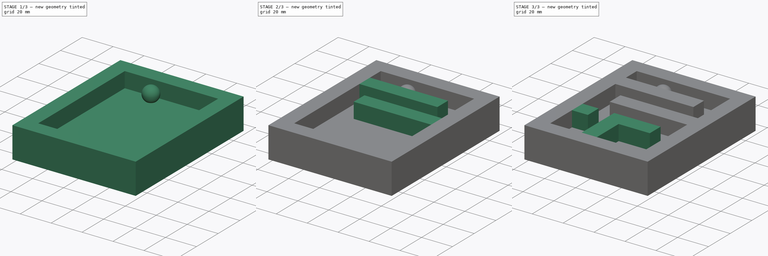
[diagram: build sequence overview — one tinted view per stage of 3, left to right]
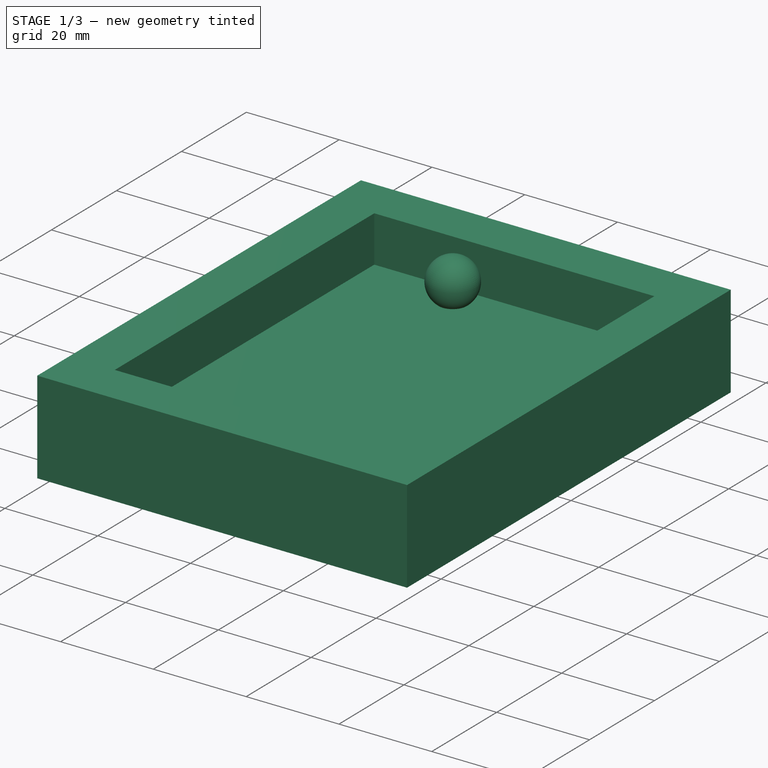
[diagram: stage 1 of 3 — iso view after this stage's code; geometry added in this stage tinted green]
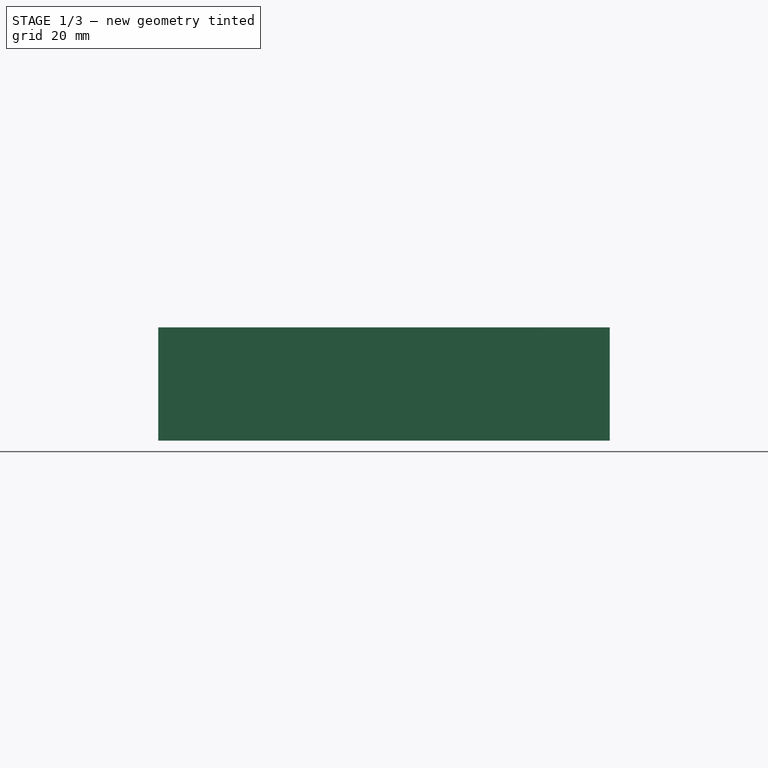
[diagram: stage 1 of 3 — front view after this stage's code; geometry added in this stage tinted green]
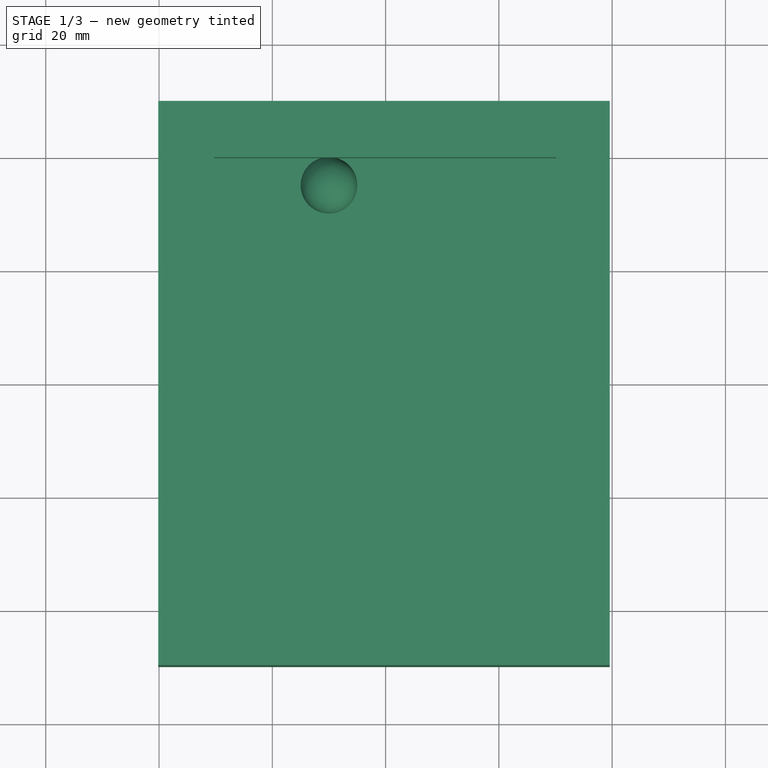
[diagram: stage 1 of 3 — top view after this stage's code; geometry added in this stage tinted green]
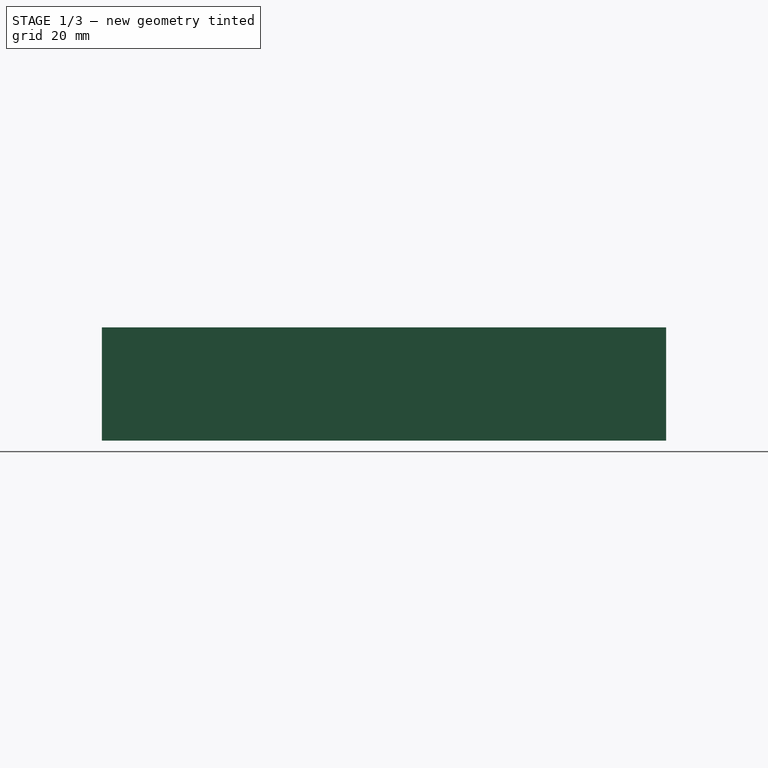
[diagram: stage 1 of 3 — right view after this stage's code; geometry added in this stage tinted green]
FCSTD DOCUMENT  (FreeCAD 0.21R33694 (Git))
Label: OJT1_T17R03_laberint
License: All rights reserved
LicenseURL: https://en.wikipedia.org/wiki/All_rights_reserved
objects: Sketcher::SketchObject×7, PartDesign::Pad×5, PartDesign::Pocket×2, PartDesign::Body×1, Part::Sphere×1
note: 23 computed .brp shape members not serialized (recipe doc carries the construction recipe); baked Part::Feature solids carry a one-line shape summary decoded from their .brp

FEATURE [Sketcher::SketchObject] Sketch
  FullyConstrained = false
  MapMode = 5
  Support = -> [XY_Plane]
  sketch-geometry (5):
    g0: LineSegment StartX=0 StartY=49.7811 StartZ=0 EndX=-40.1331 EndY=49.7811 EndZ=0
    g1: LineSegment StartX=-40.1331 StartY=49.7811 StartZ=0 EndX=-40.1331 EndY=-49.846 EndZ=0
    g2: LineSegment StartX=-40.1331 StartY=-49.846 StartZ=0 EndX=39.5686 EndY=-49.846 EndZ=0
    g3: LineSegment StartX=39.5686 StartY=-49.846 StartZ=0 EndX=39.5686 EndY=49.7811 EndZ=0
    g4: LineSegment StartX=39.5686 StartY=49.7811 StartZ=0 EndX=0 EndY=49.7811 EndZ=0
  constraints (11):
    c: PointOnObject(g0,g-2)
    c: Horizontal(g0)
    c: Coincident(g0,g1)
    c: Vertical(g1)
    c: Coincident(g1,g2)
    c: Horizontal(g2)
    c: Coincident(g2,g3)
    c: Vertical(g3)
    c: Coincident(g3,g4)
    c: Coincident(g4,g0)
    c: Horizontal(g4)
FEATURE [PartDesign::Pad] Pad
  Direction = (0,0,1)
  Length = 20
  Length2 = 10
  Profile = -> Sketch
  ReferenceAxis = -> Sketch [N_Axis]
  Type = 0
FEATURE [Sketcher::SketchObject] Sketch001
  FullyConstrained = false
  MapMode = 5
  Placement = pos=(0,0,20) rot=(0,0,1;0rad)
  Support = -> [Pad]
  sketch-geometry (4):
    g0: LineSegment StartX=-30.2966 StartY=39.8305 StartZ=0 EndX=-30.2966 EndY=-40.0424 EndZ=0
    g1: LineSegment StartX=-30.2966 StartY=-40.0424 StartZ=0 EndX=30.0847 EndY=-40.0424 EndZ=0
    g2: LineSegment StartX=30.0847 StartY=-40.0424 StartZ=0 EndX=30.0847 EndY=39.8305 EndZ=0
    g3: LineSegment StartX=30.0847 StartY=39.8305 StartZ=0 EndX=-30.2966 EndY=39.8305 EndZ=0
  constraints (8):
    c: Vertical(g0)
    c: Coincident(g0,g1)
    c: Horizontal(g1)
    c: Coincident(g1,g2)
    c: Vertical(g2)
    c: Coincident(g2,g3)
    c: Coincident(g3,g0)
    c: Horizontal(g3)
FEATURE [PartDesign::Pocket] Pocket
  BaseFeature = -> Pad
  Direction = (0,0,-1)
  Length = 10
  Length2 = 5
  Profile = -> Sketch001
  ReferenceAxis = -> Sketch001 [N_Axis]
  Type = 0
FEATURE [PartDesign::Body] Body
  Group = -> [Sketch,Pad,Sketch001,Pocket,Sketch002,Pad001,Sketch003,Pad002,Sketch004,Pad003,Sketch005,Pad004,Sketch006,Pocket001]
  Origin = -> Origin
  Tip = -> Pocket001
FEATURE [Part::Sphere] Sphere  label="Esfera"
  Angle1 = -90
  Angle2 = 90
  Angle3 = 360
  AttacherType = Attacher::AttachEngine3D
  Placement = pos=(-10,35,14) rot=(0,0,1;0rad)
  Radius = 5
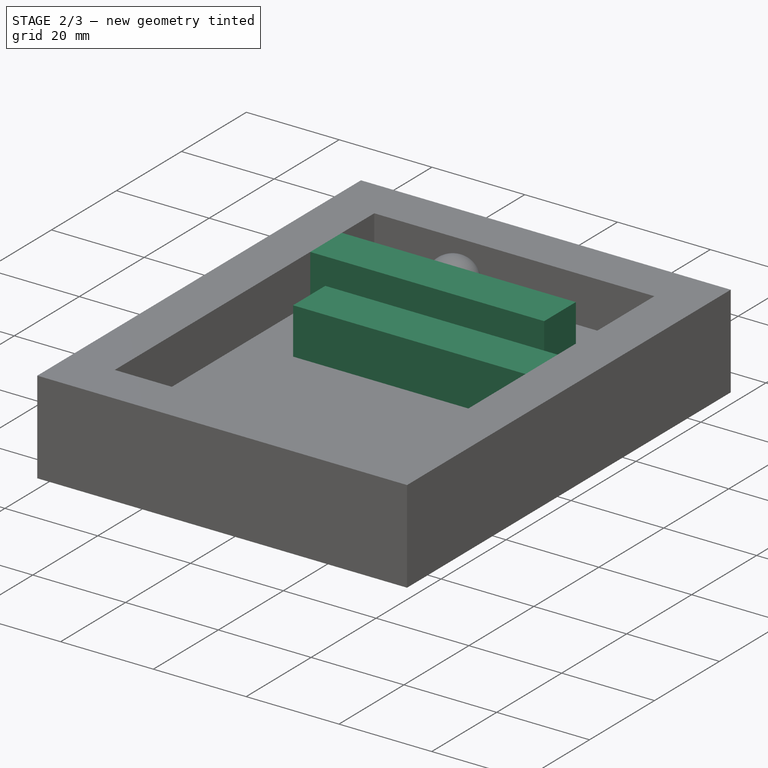
[diagram: stage 2 of 3 — iso view after this stage's code; geometry added in this stage tinted green]
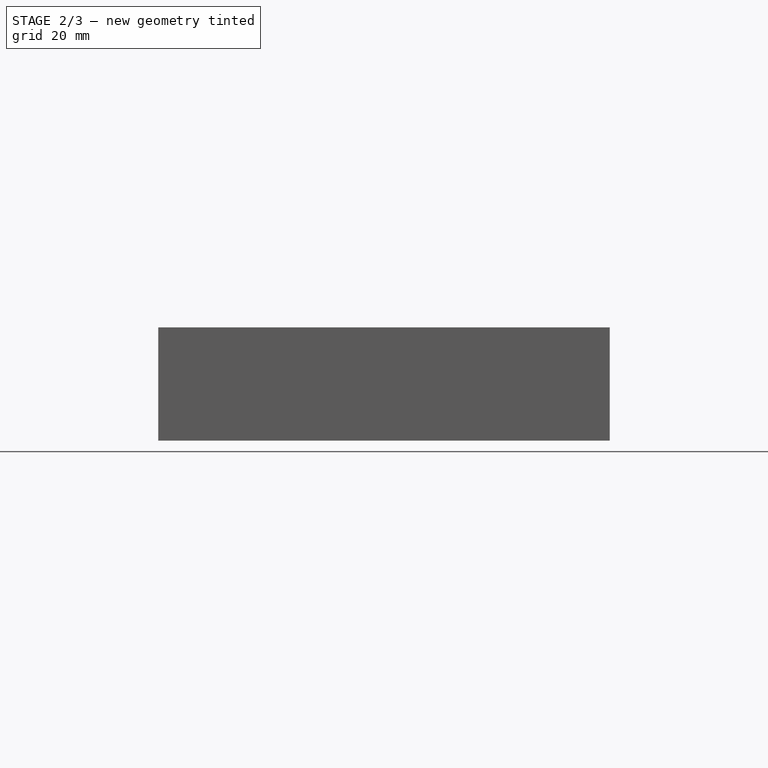
[diagram: stage 2 of 3 — front view after this stage's code; geometry added in this stage tinted green]
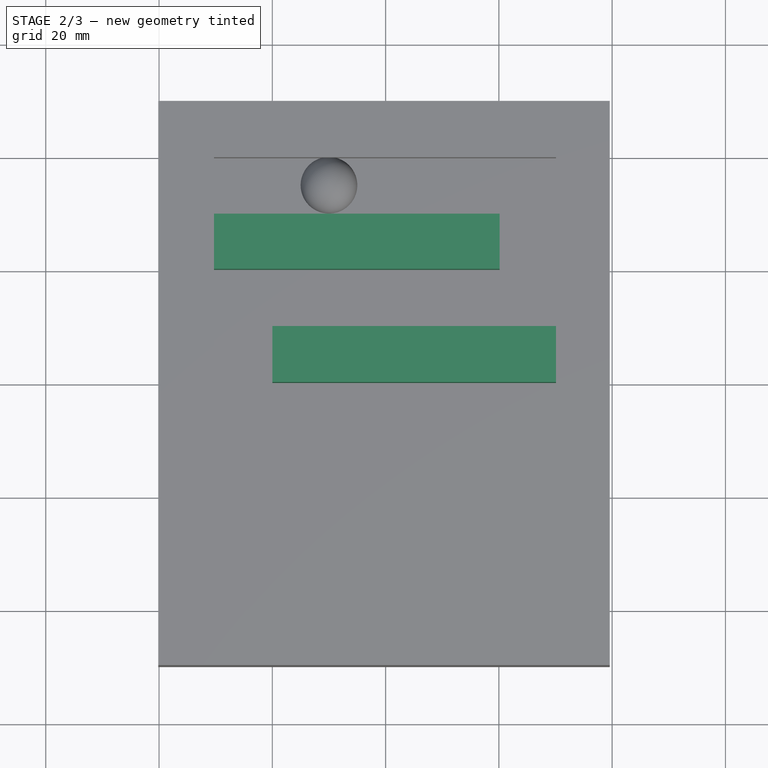
[diagram: stage 2 of 3 — top view after this stage's code; geometry added in this stage tinted green]
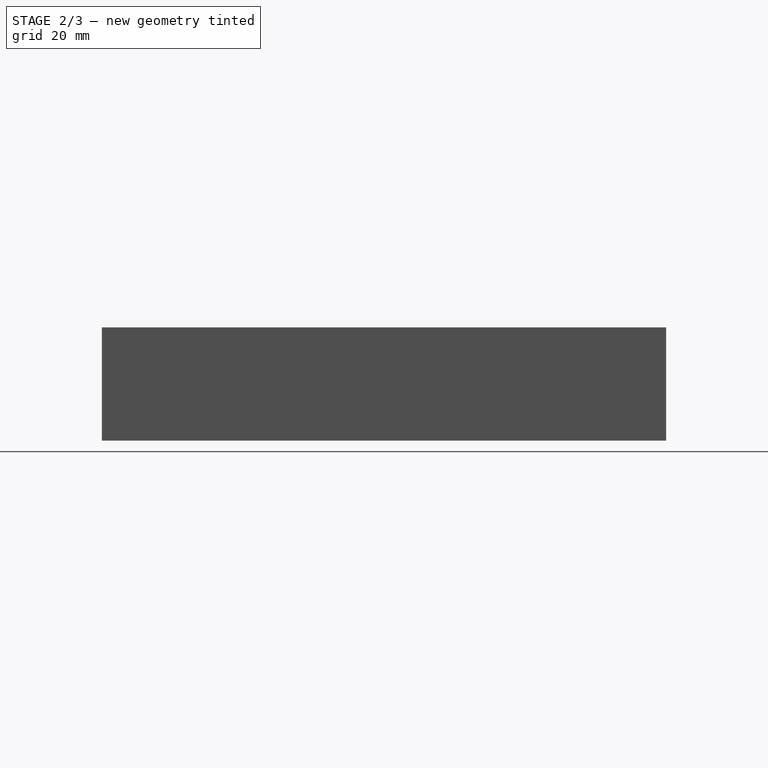
[diagram: stage 2 of 3 — right view after this stage's code; geometry added in this stage tinted green]
FEATURE [Sketcher::SketchObject] Sketch002
  FullyConstrained = false
  MapMode = 5
  Placement = pos=(0,0,10) rot=(0,0,1;0rad)
  Support = -> [Pocket]
  sketch-geometry (4):
    g0: LineSegment StartX=-30.5085 StartY=29.8729 StartZ=0 EndX=20.1271 EndY=29.8729 EndZ=0
    g1: LineSegment StartX=20.1271 StartY=29.8729 StartZ=0 EndX=20.1271 EndY=20.1271 EndZ=0
    g2: LineSegment StartX=20.1271 StartY=20.1271 StartZ=0 EndX=-30.5085 EndY=20.1271 EndZ=0
    g3: LineSegment StartX=-30.5085 StartY=20.1271 StartZ=0 EndX=-30.5085 EndY=29.8729 EndZ=0
  constraints (8):
    c: Horizontal(g0)
    c: Coincident(g0,g1)
    c: Vertical(g1)
    c: Coincident(g1,g2)
    c: Horizontal(g2)
    c: Coincident(g2,g3)
    c: Coincident(g3,g0)
    c: Vertical(g3)
FEATURE [PartDesign::Pad] Pad001
  BaseFeature = -> Pocket
  Direction = (0,0,1)
  Length = 10
  Length2 = 10
  Profile = -> Sketch002
  ReferenceAxis = -> Sketch002 [N_Axis]
  Type = 0
FEATURE [Sketcher::SketchObject] Sketch003
  FullyConstrained = false
  MapMode = 5
  Placement = pos=(0,0,10) rot=(0,0,1;0rad)
  Support = -> [Pad001]
  sketch-geometry (4):
    g0: LineSegment StartX=30.3887 StartY=10.0443 StartZ=0 EndX=-19.9983 EndY=10.0443 EndZ=0
    g1: LineSegment StartX=-19.9983 StartY=10.0443 StartZ=0 EndX=-19.9983 EndY=0.13657 EndZ=0
    g2: LineSegment StartX=-19.9983 StartY=0.13657 StartZ=0 EndX=30.3887 EndY=0.13657 EndZ=0
    g3: LineSegment StartX=30.3887 StartY=0.13657 StartZ=0 EndX=30.3887 EndY=10.0443 EndZ=0
  constraints (8):
    c: Horizontal(g0)
    c: Coincident(g0,g1)
    c: Vertical(g1)
    c: Coincident(g1,g2)
    c: Horizontal(g2)
    c: Coincident(g2,g3)
    c: Coincident(g3,g0)
    c: Vertical(g3)
FEATURE [PartDesign::Pad] Pad002
  BaseFeature = -> Pad001
  Direction = (0,0,1)
  Length = 10
  Length2 = 10
  Profile = -> Sketch003
  ReferenceAxis = -> Sketch003 [N_Axis]
  Type = 0
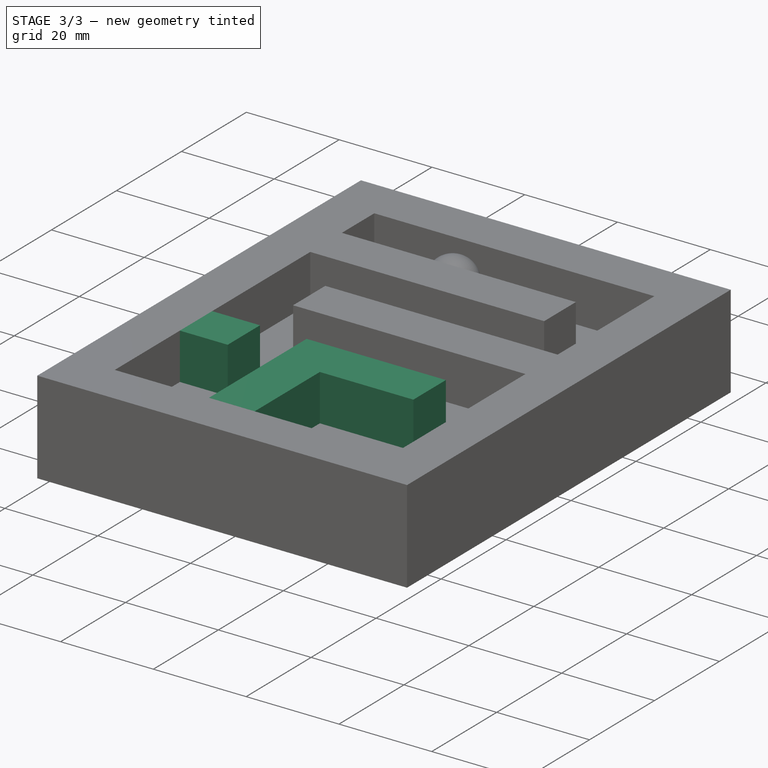
[diagram: stage 3 of 3 — iso view after this stage's code; geometry added in this stage tinted green]
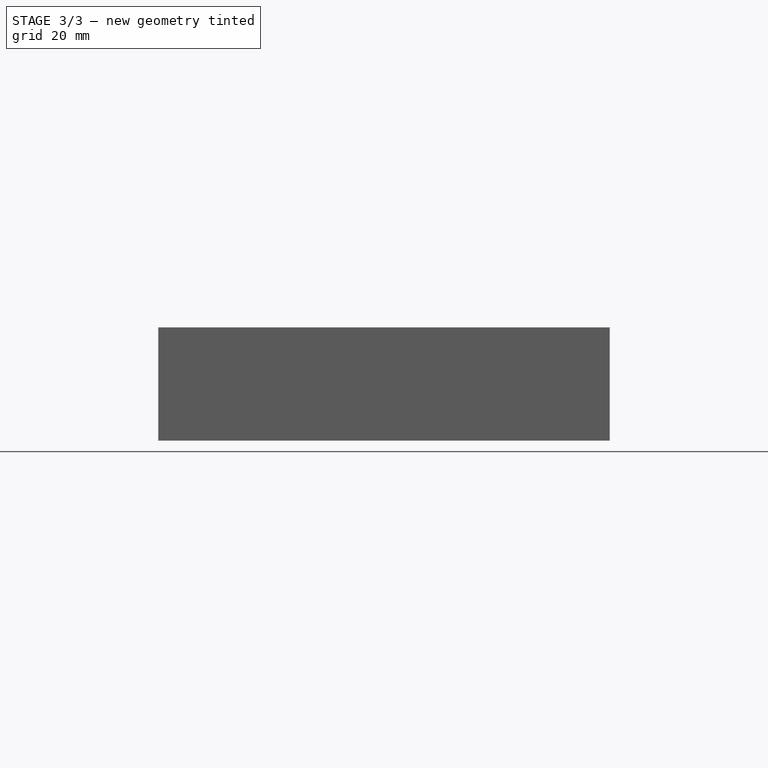
[diagram: stage 3 of 3 — front view after this stage's code; geometry added in this stage tinted green]
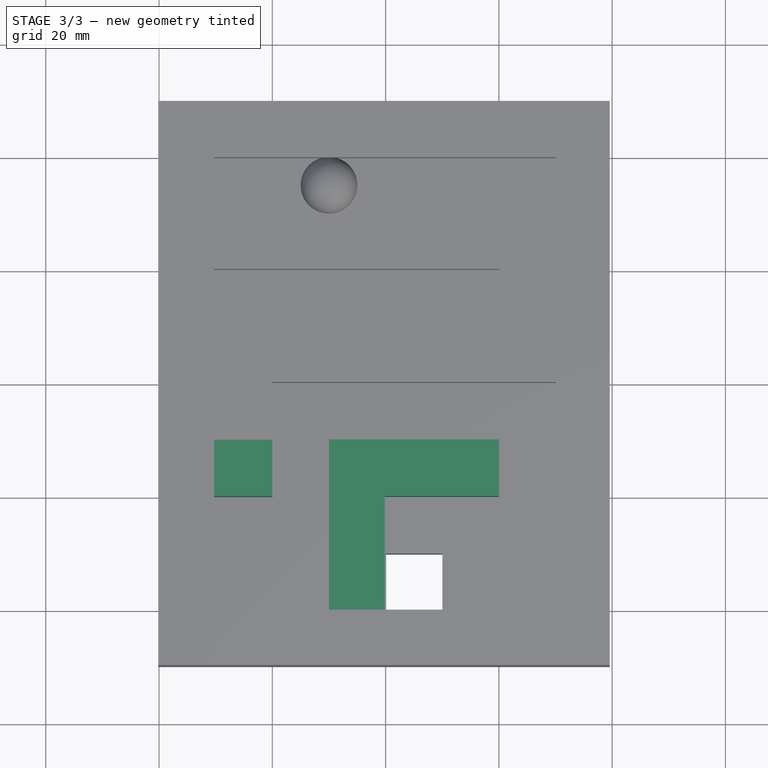
[diagram: stage 3 of 3 — top view after this stage's code; geometry added in this stage tinted green]
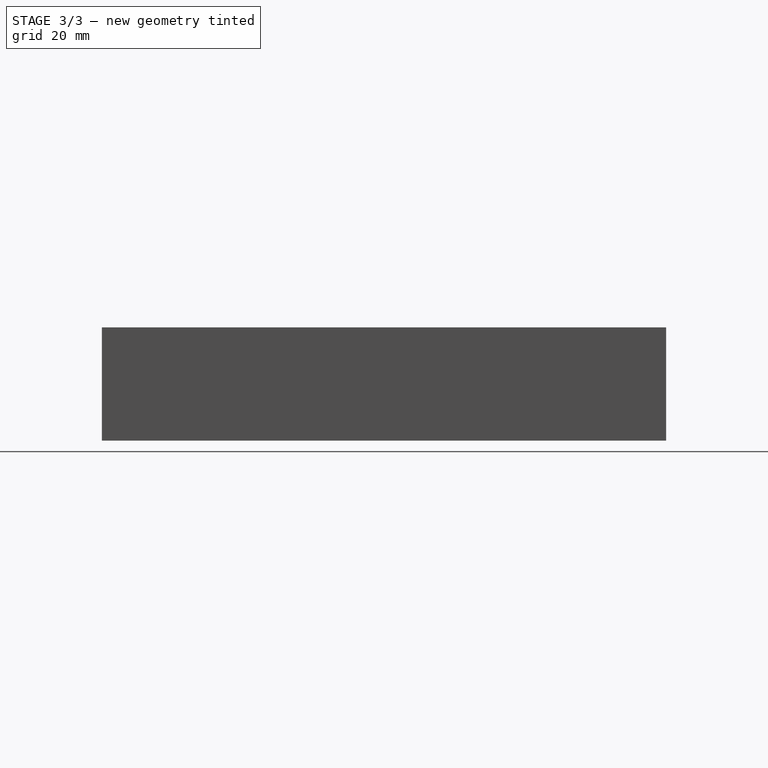
[diagram: stage 3 of 3 — right view after this stage's code; geometry added in this stage tinted green]
FEATURE [Sketcher::SketchObject] Sketch004
  FullyConstrained = false
  MapMode = 5
  Placement = pos=(0,0,10) rot=(0,0,1;0rad)
  Support = -> [Pad002]
  sketch-geometry (4):
    g0: LineSegment StartX=-30.3998 StartY=-10.0619 StartZ=0 EndX=-19.9874 EndY=-10.0619 EndZ=0
    g1: LineSegment StartX=-19.9874 StartY=-10.0619 StartZ=0 EndX=-19.9874 EndY=-20.006 EndZ=0
    g2: LineSegment StartX=-19.9874 StartY=-20.006 StartZ=0 EndX=-30.3998 EndY=-20.006 EndZ=0
    g3: LineSegment StartX=-30.3998 StartY=-20.006 StartZ=0 EndX=-30.3998 EndY=-10.0619 EndZ=0
  constraints (8):
    c: Horizontal(g0)
    c: Coincident(g0,g1)
    c: Vertical(g1)
    c: Coincident(g1,g2)
    c: Horizontal(g2)
    c: Coincident(g2,g3)
    c: Coincident(g3,g0)
    c: Vertical(g3)
FEATURE [PartDesign::Pad] Pad003
  BaseFeature = -> Pad002
  Direction = (0,0,1)
  Length = 10
  Length2 = 10
  Profile = -> Sketch004
  ReferenceAxis = -> Sketch004 [N_Axis]
  Type = 0
FEATURE [Sketcher::SketchObject] Sketch005
  FullyConstrained = false
  MapMode = 5
  Placement = pos=(0,0,10) rot=(0,0,1;0rad)
  Support = -> [Pad003]
  sketch-geometry (6):
    g0: LineSegment StartX=-9.99892 StartY=-40.0309 StartZ=0 EndX=-9.99892 EndY=-9.9767 EndZ=0
    g1: LineSegment StartX=-9.99892 StartY=-9.9767 StartZ=0 EndX=20.0142 EndY=-9.9767 EndZ=0
    g2: LineSegment StartX=20.0142 StartY=-9.9767 StartZ=0 EndX=20.0142 EndY=-19.9848 EndZ=0
    g3: LineSegment StartX=20.0142 StartY=-19.9848 StartZ=0 EndX=-0.144092 EndY=-19.9848 EndZ=0
    g4: LineSegment StartX=-0.144092 StartY=-19.9848 StartZ=0 EndX=-0.144092 EndY=-40.0309 EndZ=0
    g5: LineSegment StartX=-0.144092 StartY=-40.0309 StartZ=0 EndX=-9.99892 EndY=-40.0309 EndZ=0
  constraints (12):
    c: Vertical(g0)
    c: Coincident(g0,g1)
    c: Horizontal(g1)
    c: Coincident(g1,g2)
    c: Vertical(g2)
    c: Coincident(g2,g3)
    c: Horizontal(g3)
    c: Coincident(g3,g4)
    c: Vertical(g4)
    c: Coincident(g4,g5)
    c: Coincident(g5,g0)
    c: Horizontal(g5)
FEATURE [PartDesign::Pad] Pad004
  BaseFeature = -> Pad003
  Direction = (0,0,1)
  Length = 10
  Length2 = 10
  Profile = -> Sketch005
  ReferenceAxis = -> Sketch005 [N_Axis]
  Type = 0
FEATURE [Sketcher::SketchObject] Sketch006
  FullyConstrained = false
  MapMode = 5
  Placement = pos=(0,0,10) rot=(0,0,1;0rad)
  Support = -> [Pad004]
  sketch-geometry (4):
    g0: LineSegment StartX=10.0142 StartY=-40.0148 StartZ=0 EndX=10.0142 EndY=-29.9875 EndZ=0
    g1: LineSegment StartX=10.0142 StartY=-29.9875 StartZ=0 EndX=0 EndY=-29.9875 EndZ=0
    g2: LineSegment StartX=0 StartY=-29.9875 StartZ=0 EndX=0 EndY=-40.0148 EndZ=0
    g3: LineSegment StartX=0 StartY=-40.0148 StartZ=0 EndX=10.0142 EndY=-40.0148 EndZ=0
  constraints (9):
    c: Vertical(g0)
    c: Coincident(g0,g1)
    c: PointOnObject(g1,g-2)
    c: Horizontal(g1)
    c: Coincident(g1,g2)
    c: Vertical(g2)
    c: Coincident(g2,g3)
    c: Coincident(g3,g0)
    c: Horizontal(g3)
FEATURE [PartDesign::Pocket] Pocket001
  BaseFeature = -> Pad004
  Direction = (0,0,-1)
  Length = 5
  Length2 = 5
  Profile = -> Sketch006
  ReferenceAxis = -> Sketch006 [N_Axis]
  Type = 1
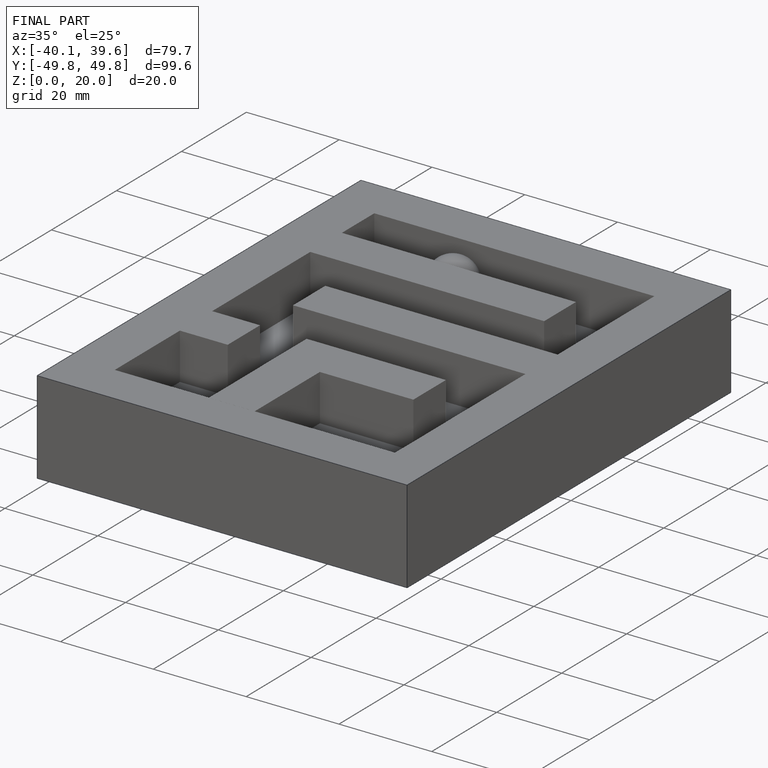
[diagram: finished part — iso view with bounding-box wireframe]
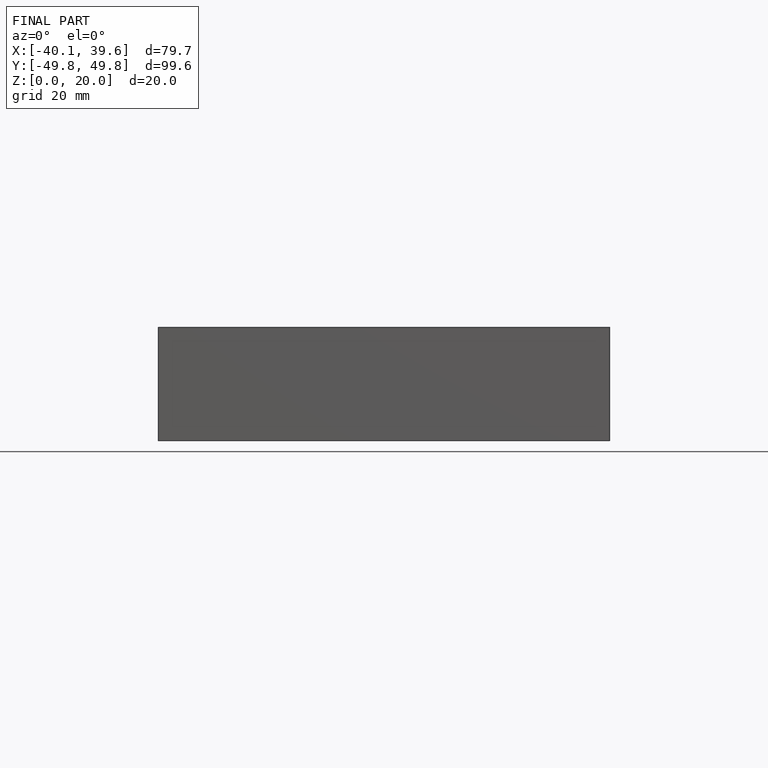
[diagram: finished part — front view with bounding-box wireframe]
